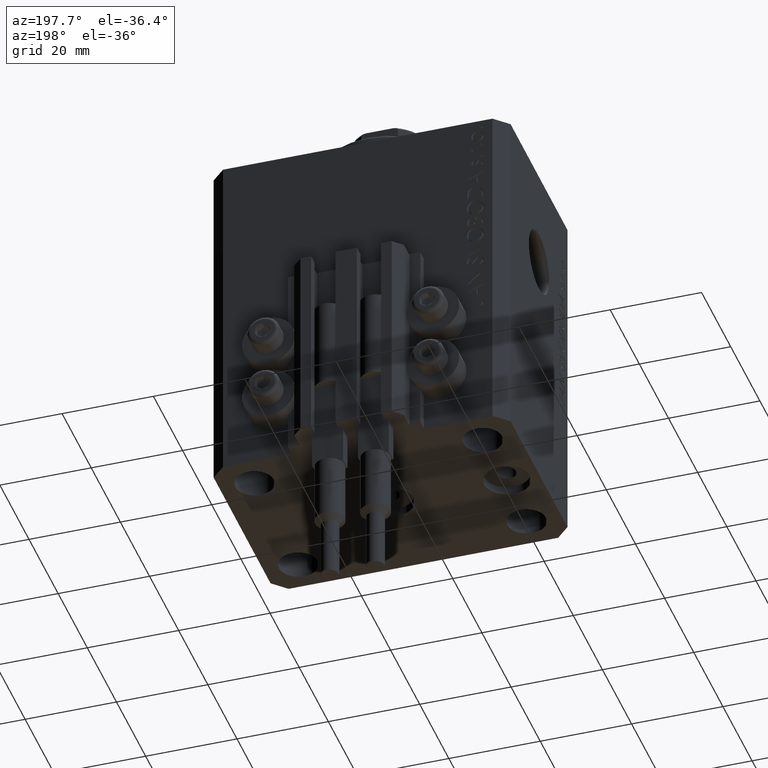
[diagram: clean part render]
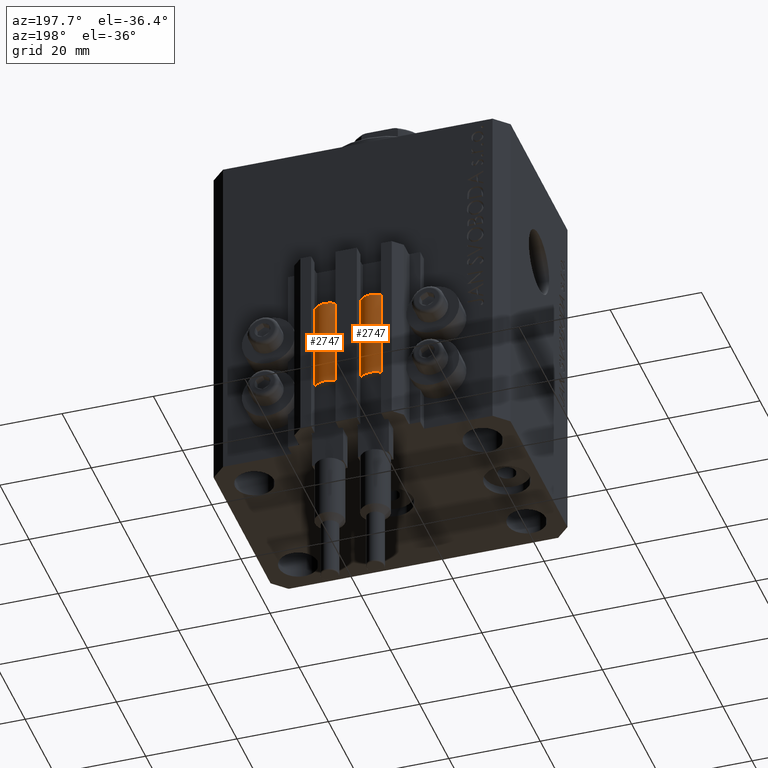
[diagram: same view with one multi-face feature highlighted, each face labeled with its STEP entity id]
A machine part, auxiliary view. The highlighted faces form ONE feature: a constant-radius fillet chain: 2 tangent blend faces with common blend radius 3.4 mm. The faces share edges in the B-rep.
Their STEP definitions:
[1] entity #2747 (Cylinder):
#538 = DIRECTION ( 'NONE',  ( 0.000000000000000000, 0.000000000000000000, 1.000000000000000000 ) ) ;
#1398 = VECTOR ( 'NONE', #16179, 1000.000000000000000 ) ;
#1419 = DIRECTION ( 'NONE',  ( 1.000000000000000000, 0.000000000000000000, 0.000000000000000000 ) ) ;
#2747 = ADVANCED_FACE ( 'NONE', ( #3366 ), #48022, .T. ) ;
#3011 = CARTESIAN_POINT ( 'NONE',  ( -3.051229260478471428, -1.500000000000000000, 20.00000000000000000 ) ) ;
#3126 = CARTESIAN_POINT ( 'NONE',  ( 0.000000000000000000, 0.000000000000000000, 20.00000000000000000 ) ) ;
#3366 = FACE_OUTER_BOUND ( 'NONE', #3695, .T. ) ;
#3695 = EDGE_LOOP ( 'NONE', ( #40780, #7548, #44178, #44896, #37632, #45439 ) ) ;
#4664 = CARTESIAN_POINT ( 'NONE',  ( 0.000000000000000000, 0.000000000000000000, 20.00000000000000000 ) ) ;
#5137 = DIRECTION ( 'NONE',  ( 1.000000000000000000, 0.000000000000000000, 0.000000000000000000 ) ) ;
#5231 = AXIS2_PLACEMENT_3D ( 'NONE', #8501, #8970, #1419 ) ;
#7329 = AXIS2_PLACEMENT_3D ( 'NONE', #3126, #18010, #18245 ) ;
#7355 = CARTESIAN_POINT ( 'NONE',  ( 0.000000000000000000, 0.000000000000000000, 0.000000000000000000 ) ) ;
#7548 = ORIENTED_EDGE ( 'NONE', *, *, #14853, .F. ) ;
#8501 = CARTESIAN_POINT ( 'NONE',  ( 0.000000000000000000, 0.000000000000000000, 20.00000000000000000 ) ) ;
#8970 = DIRECTION ( 'NONE',  ( 0.000000000000000000, 0.000000000000000000, 1.000000000000000000 ) ) ;
#10504 = VERTEX_POINT ( 'NONE', #13087 ) ;
#10685 = AXIS2_PLACEMENT_3D ( 'NONE', #44975, #538, #26424 ) ;
#12710 = EDGE_CURVE ( 'NONE', #25043, #37465, #34965, .T. ) ;
#12875 = EDGE_CURVE ( 'NONE', #37465, #39138, #20100, .T. ) ;
#12982 = CARTESIAN_POINT ( 'NONE',  ( -3.400000000000000355, 0.000000000000000000, 20.00000000000000000 ) ) ;
#13087 = CARTESIAN_POINT ( 'NONE',  ( 3.051229260478471428, -1.500000000000000000, 20.00000000000000000 ) ) ;
#14853 = EDGE_CURVE ( 'NONE', #10504, #26728, #19497, .T. ) ;
#16047 = EDGE_CURVE ( 'NONE', #26728, #39138, #33381, .T. ) ;
#16179 = DIRECTION ( 'NONE',  ( -0.000000000000000000, -0.000000000000000000, -1.000000000000000000 ) ) ;
#18010 = DIRECTION ( 'NONE',  ( -0.000000000000000000, -0.000000000000000000, -1.000000000000000000 ) ) ;
#18245 = DIRECTION ( 'NONE',  ( -1.000000000000000000, 0.000000000000000000, 0.000000000000000000 ) ) ;
#19497 = CIRCLE ( 'NONE', #42871, 3.400000000000000355 ) ;
#20100 = CIRCLE ( 'NONE', #47388, 3.400000000000000355 ) ;
#21888 = VECTOR ( 'NONE', #43388, 1000.000000000000000 ) ;
#23064 = CARTESIAN_POINT ( 'NONE',  ( 3.400000000000000355, 4.163799117101001052E-16, 0.000000000000000000 ) ) ;
#23544 = EDGE_CURVE ( 'NONE', #24462, #10504, #28598, .T. ) ;
#23922 = DIRECTION ( 'NONE',  ( 0.000000000000000000, 0.000000000000000000, 1.000000000000000000 ) ) ;
#24462 = VERTEX_POINT ( 'NONE', #3011 ) ;
#25043 = VERTEX_POINT ( 'NONE', #31147 ) ;
#25529 = EDGE_CURVE ( 'NONE', #25043, #24462, #43411, .T. ) ;
#26424 = DIRECTION ( 'NONE',  ( 1.000000000000000000, 0.000000000000000000, 0.000000000000000000 ) ) ;
#26633 = DIRECTION ( 'NONE',  ( 0.000000000000000000, 0.000000000000000000, 1.000000000000000000 ) ) ;
#26728 = VERTEX_POINT ( 'NONE', #29795 ) ;
#28598 = CIRCLE ( 'NONE', #5231, 3.400000000000000355 ) ;
#29795 = CARTESIAN_POINT ( 'NONE',  ( 3.400000000000000355, 0.000000000000000000, 20.00000000000000000 ) ) ;
#31147 = CARTESIAN_POINT ( 'NONE',  ( -3.399999999999999467, -4.915049848600952119E-16, 20.00000000000000000 ) ) ;
#33189 = CARTESIAN_POINT ( 'NONE',  ( -3.400000000000000355, 0.000000000000000000, 0.000000000000000000 ) ) ;
#33381 = LINE ( 'NONE', #47288, #21888 ) ;
#34965 = LINE ( 'NONE', #12982, #1398 ) ;
#37465 = VERTEX_POINT ( 'NONE', #33189 ) ;
#37632 = ORIENTED_EDGE ( 'NONE', *, *, #12710, .T. ) ;
#39138 = VERTEX_POINT ( 'NONE', #23064 ) ;
#40780 = ORIENTED_EDGE ( 'NONE', *, *, #16047, .F. ) ;
#41516 = DIRECTION ( 'NONE',  ( 1.000000000000000000, 0.000000000000000000, 0.000000000000000000 ) ) ;
#42871 = AXIS2_PLACEMENT_3D ( 'NONE', #4664, #23922, #5137 ) ;
#43388 = DIRECTION ( 'NONE',  ( -0.000000000000000000, -0.000000000000000000, -1.000000000000000000 ) ) ;
#43411 = CIRCLE ( 'NONE', #10685, 3.400000000000000355 ) ;
#44178 = ORIENTED_EDGE ( 'NONE', *, *, #23544, .F. ) ;
#44896 = ORIENTED_EDGE ( 'NONE', *, *, #25529, .F. ) ;
#44975 = CARTESIAN_POINT ( 'NONE',  ( 0.000000000000000000, 0.000000000000000000, 20.00000000000000000 ) ) ;
#45439 = ORIENTED_EDGE ( 'NONE', *, *, #12875, .T. ) ;
#47288 = CARTESIAN_POINT ( 'NONE',  ( 3.400000000000000355, 4.163799117101001052E-16, 20.00000000000000000 ) ) ;
#47388 = AXIS2_PLACEMENT_3D ( 'NONE', #7355, #26633, #41516 ) ;
#48022 = CYLINDRICAL_SURFACE ( 'NONE', #7329, 3.400000000000000355 ) ;
[2] entity #2747 (Cylinder):
#538 = DIRECTION ( 'NONE',  ( 0.000000000000000000, 0.000000000000000000, 1.000000000000000000 ) ) ;
#1398 = VECTOR ( 'NONE', #16179, 1000.000000000000000 ) ;
#1419 = DIRECTION ( 'NONE',  ( 1.000000000000000000, 0.000000000000000000, 0.000000000000000000 ) ) ;
#2747 = ADVANCED_FACE ( 'NONE', ( #3366 ), #48022, .T. ) ;
#3011 = CARTESIAN_POINT ( 'NONE',  ( -3.051229260478471428, -1.500000000000000000, 20.00000000000000000 ) ) ;
#3126 = CARTESIAN_POINT ( 'NONE',  ( 0.000000000000000000, 0.000000000000000000, 20.00000000000000000 ) ) ;
#3366 = FACE_OUTER_BOUND ( 'NONE', #3695, .T. ) ;
#3695 = EDGE_LOOP ( 'NONE', ( #40780, #7548, #44178, #44896, #37632, #45439 ) ) ;
#4664 = CARTESIAN_POINT ( 'NONE',  ( 0.000000000000000000, 0.000000000000000000, 20.00000000000000000 ) ) ;
#5137 = DIRECTION ( 'NONE',  ( 1.000000000000000000, 0.000000000000000000, 0.000000000000000000 ) ) ;
#5231 = AXIS2_PLACEMENT_3D ( 'NONE', #8501, #8970, #1419 ) ;
#7329 = AXIS2_PLACEMENT_3D ( 'NONE', #3126, #18010, #18245 ) ;
#7355 = CARTESIAN_POINT ( 'NONE',  ( 0.000000000000000000, 0.000000000000000000, 0.000000000000000000 ) ) ;
#7548 = ORIENTED_EDGE ( 'NONE', *, *, #14853, .F. ) ;
#8501 = CARTESIAN_POINT ( 'NONE',  ( 0.000000000000000000, 0.000000000000000000, 20.00000000000000000 ) ) ;
#8970 = DIRECTION ( 'NONE',  ( 0.000000000000000000, 0.000000000000000000, 1.000000000000000000 ) ) ;
#10504 = VERTEX_POINT ( 'NONE', #13087 ) ;
#10685 = AXIS2_PLACEMENT_3D ( 'NONE', #44975, #538, #26424 ) ;
#12710 = EDGE_CURVE ( 'NONE', #25043, #37465, #34965, .T. ) ;
#12875 = EDGE_CURVE ( 'NONE', #37465, #39138, #20100, .T. ) ;
#12982 = CARTESIAN_POINT ( 'NONE',  ( -3.400000000000000355, 0.000000000000000000, 20.00000000000000000 ) ) ;
#13087 = CARTESIAN_POINT ( 'NONE',  ( 3.051229260478471428, -1.500000000000000000, 20.00000000000000000 ) ) ;
#14853 = EDGE_CURVE ( 'NONE', #10504, #26728, #19497, .T. ) ;
#16047 = EDGE_CURVE ( 'NONE', #26728, #39138, #33381, .T. ) ;
#16179 = DIRECTION ( 'NONE',  ( -0.000000000000000000, -0.000000000000000000, -1.000000000000000000 ) ) ;
#18010 = DIRECTION ( 'NONE',  ( -0.000000000000000000, -0.000000000000000000, -1.000000000000000000 ) ) ;
#18245 = DIRECTION ( 'NONE',  ( -1.000000000000000000, 0.000000000000000000, 0.000000000000000000 ) ) ;
#19497 = CIRCLE ( 'NONE', #42871, 3.400000000000000355 ) ;
#20100 = CIRCLE ( 'NONE', #47388, 3.400000000000000355 ) ;
#21888 = VECTOR ( 'NONE', #43388, 1000.000000000000000 ) ;
#23064 = CARTESIAN_POINT ( 'NONE',  ( 3.400000000000000355, 4.163799117101001052E-16, 0.000000000000000000 ) ) ;
#23544 = EDGE_CURVE ( 'NONE', #24462, #10504, #28598, .T. ) ;
#23922 = DIRECTION ( 'NONE',  ( 0.000000000000000000, 0.000000000000000000, 1.000000000000000000 ) ) ;
#24462 = VERTEX_POINT ( 'NONE', #3011 ) ;
#25043 = VERTEX_POINT ( 'NONE', #31147 ) ;
#25529 = EDGE_CURVE ( 'NONE', #25043, #24462, #43411, .T. ) ;
#26424 = DIRECTION ( 'NONE',  ( 1.000000000000000000, 0.000000000000000000, 0.000000000000000000 ) ) ;
#26633 = DIRECTION ( 'NONE',  ( 0.000000000000000000, 0.000000000000000000, 1.000000000000000000 ) ) ;
#26728 = VERTEX_POINT ( 'NONE', #29795 ) ;
#28598 = CIRCLE ( 'NONE', #5231, 3.400000000000000355 ) ;
#29795 = CARTESIAN_POINT ( 'NONE',  ( 3.400000000000000355, 0.000000000000000000, 20.00000000000000000 ) ) ;
#31147 = CARTESIAN_POINT ( 'NONE',  ( -3.399999999999999467, -4.915049848600952119E-16, 20.00000000000000000 ) ) ;
#33189 = CARTESIAN_POINT ( 'NONE',  ( -3.400000000000000355, 0.000000000000000000, 0.000000000000000000 ) ) ;
#33381 = LINE ( 'NONE', #47288, #21888 ) ;
#34965 = LINE ( 'NONE', #12982, #1398 ) ;
#37465 = VERTEX_POINT ( 'NONE', #33189 ) ;
#37632 = ORIENTED_EDGE ( 'NONE', *, *, #12710, .T. ) ;
#39138 = VERTEX_POINT ( 'NONE', #23064 ) ;
#40780 = ORIENTED_EDGE ( 'NONE', *, *, #16047, .F. ) ;
#41516 = DIRECTION ( 'NONE',  ( 1.000000000000000000, 0.000000000000000000, 0.000000000000000000 ) ) ;
#42871 = AXIS2_PLACEMENT_3D ( 'NONE', #4664, #23922, #5137 ) ;
#43388 = DIRECTION ( 'NONE',  ( -0.000000000000000000, -0.000000000000000000, -1.000000000000000000 ) ) ;
#43411 = CIRCLE ( 'NONE', #10685, 3.400000000000000355 ) ;
#44178 = ORIENTED_EDGE ( 'NONE', *, *, #23544, .F. ) ;
#44896 = ORIENTED_EDGE ( 'NONE', *, *, #25529, .F. ) ;
#44975 = CARTESIAN_POINT ( 'NONE',  ( 0.000000000000000000, 0.000000000000000000, 20.00000000000000000 ) ) ;
#45439 = ORIENTED_EDGE ( 'NONE', *, *, #12875, .T. ) ;
#47288 = CARTESIAN_POINT ( 'NONE',  ( 3.400000000000000355, 4.163799117101001052E-16, 20.00000000000000000 ) ) ;
#47388 = AXIS2_PLACEMENT_3D ( 'NONE', #7355, #26633, #41516 ) ;
#48022 = CYLINDRICAL_SURFACE ( 'NONE', #7329, 3.400000000000000355 ) ;